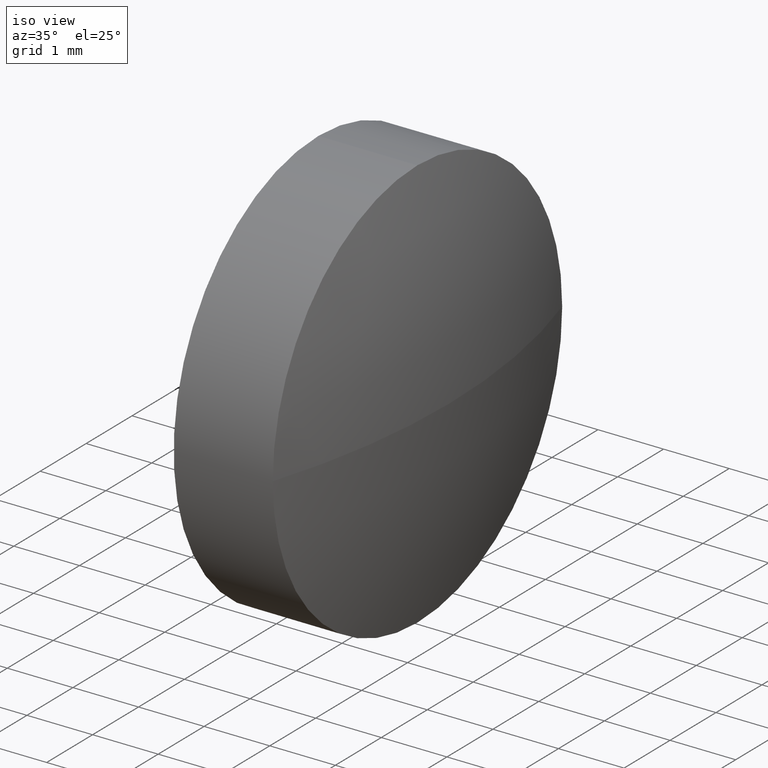
[diagram: clean part render]
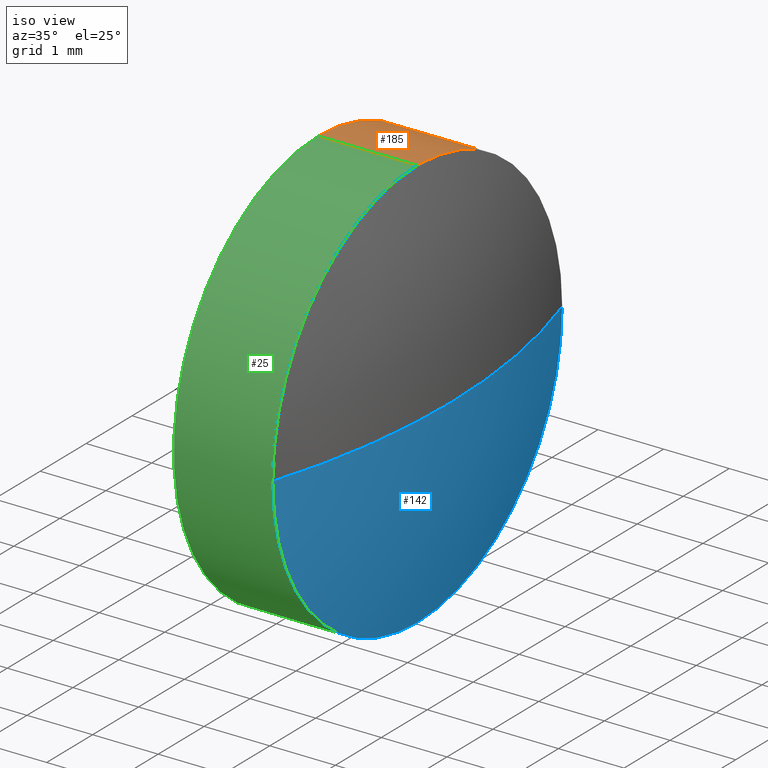
[diagram: same view with three faces highlighted in distinct colors, each labeled with its STEP entity id]
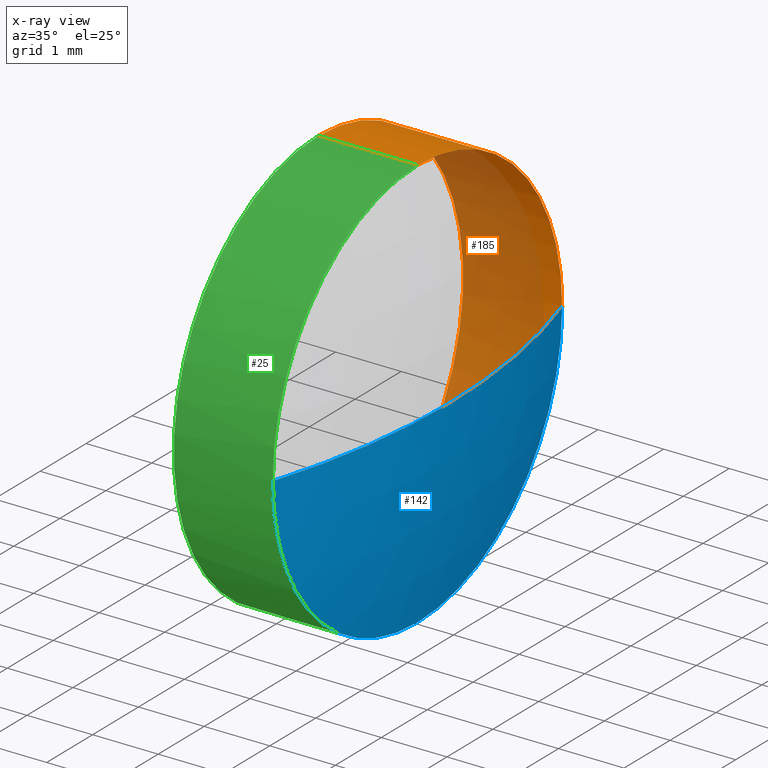
[diagram: x-ray of the same camera — body ghosted, the three highlighted faces saturated]
A machine part, iso view with three faces highlighted in distinct colors.
The next image is the same camera in x-ray (body ghosted, the three faces saturated) — at least one of them is partly hidden behind the body in this view.
Their STEP definitions:

[orange] entity #185 — the highlighted cylindrical surface (partial cylindrical patch) has radius 3.15 mm, axis along (-1, -0, -0).
#2 = CARTESIAN_POINT ( 'NONE',  ( 608.5916480025523500, -14.05118396197294000, 3.857637417314037000E-016 ) ) ;
#16 = DIRECTION ( 'NONE',  ( -1.000000000000000000, -0.0000000000000000000, -0.0000000000000000000 ) ) ;
#18 = ORIENTED_EDGE ( 'NONE', *, *, #23, .F. ) ;
#20 = CIRCLE ( 'NONE', #42, 3.149999999999998100 ) ;
#21 = EDGE_CURVE ( 'NONE', #133, #169, #31, .T. ) ;
#23 = EDGE_CURVE ( 'NONE', #69, #169, #20, .T. ) ;
#24 = EDGE_CURVE ( 'NONE', #153, #69, #150, .T. ) ;
#26 = CIRCLE ( 'NONE', #110, 3.149999999999998100 ) ;
#30 = DIRECTION ( 'NONE',  ( 0.0000000000000000000, 0.0000000000000000000, 1.000000000000000000 ) ) ;
#31 = LINE ( 'NONE', #40, #53 ) ;
#39 = CARTESIAN_POINT ( 'NONE',  ( 607.0816480025523600, -17.20118396197295900, 3.149999999999998100 ) ) ;
#40 = CARTESIAN_POINT ( 'NONE',  ( 606.2759375900104700, -17.20118396197295900, -3.149999999999998100 ) ) ;
#42 = AXIS2_PLACEMENT_3D ( 'NONE', #100, #114, #129 ) ;
#43 = CARTESIAN_POINT ( 'NONE',  ( 607.0816480025523600, -17.20118396197295900, -3.149999999999998100 ) ) ;
#48 = CARTESIAN_POINT ( 'NONE',  ( 608.5916480025523500, -17.20118396197295900, 0.0000000000000000000 ) ) ;
#50 = ORIENTED_EDGE ( 'NONE', *, *, #24, .F. ) ;
#53 = VECTOR ( 'NONE', #16, 1000.000000000000000 ) ;
#57 = AXIS2_PLACEMENT_3D ( 'NONE', #48, #105, #72 ) ;
#60 = VECTOR ( 'NONE', #146, 1000.000000000000000 ) ;
#69 = VERTEX_POINT ( 'NONE', #39 ) ;
#72 = DIRECTION ( 'NONE',  ( 0.0000000000000000000, 0.0000000000000000000, 1.000000000000000000 ) ) ;
#84 = CYLINDRICAL_SURFACE ( 'NONE', #116, 3.149999999999998100 ) ;
#85 = ORIENTED_EDGE ( 'NONE', *, *, #183, .T. ) ;
#88 = CARTESIAN_POINT ( 'NONE',  ( 606.2759375900104700, -17.20118396197295900, 0.0000000000000000000 ) ) ;
#92 = ORIENTED_EDGE ( 'NONE', *, *, #111, .T. ) ;
#100 = CARTESIAN_POINT ( 'NONE',  ( 607.0816480025523600, -17.20118396197295900, 0.0000000000000000000 ) ) ;
#101 = CIRCLE ( 'NONE', #57, 3.149999999999998100 ) ;
#102 = DIRECTION ( 'NONE',  ( -1.000000000000000000, -0.0000000000000000000, -0.0000000000000000000 ) ) ;
#105 = DIRECTION ( 'NONE',  ( -1.000000000000000000, -0.0000000000000000000, -0.0000000000000000000 ) ) ;
#110 = AXIS2_PLACEMENT_3D ( 'NONE', #179, #182, #30 ) ;
#111 = EDGE_CURVE ( 'NONE', #117, #133, #26, .T. ) ;
#114 = DIRECTION ( 'NONE',  ( -1.000000000000000000, -0.0000000000000000000, -0.0000000000000000000 ) ) ;
#116 = AXIS2_PLACEMENT_3D ( 'NONE', #88, #102, #131 ) ;
#117 = VERTEX_POINT ( 'NONE', #2 ) ;
#118 = CARTESIAN_POINT ( 'NONE',  ( 608.5916480025523500, -17.20118396197295900, 3.149999999999998100 ) ) ;
#129 = DIRECTION ( 'NONE',  ( 0.0000000000000000000, 0.0000000000000000000, 1.000000000000000000 ) ) ;
#130 = EDGE_LOOP ( 'NONE', ( #92, #171, #18, #50, #85 ) ) ;
#131 = DIRECTION ( 'NONE',  ( 0.0000000000000000000, 0.0000000000000000000, 1.000000000000000000 ) ) ;
#133 = VERTEX_POINT ( 'NONE', #162 ) ;
#140 = FACE_OUTER_BOUND ( 'NONE', #130, .T. ) ;
#144 = CARTESIAN_POINT ( 'NONE',  ( 606.2759375900104700, -17.20118396197295900, 3.149999999999998100 ) ) ;
#146 = DIRECTION ( 'NONE',  ( -1.000000000000000000, -0.0000000000000000000, -0.0000000000000000000 ) ) ;
#150 = LINE ( 'NONE', #144, #60 ) ;
#153 = VERTEX_POINT ( 'NONE', #118 ) ;
#162 = CARTESIAN_POINT ( 'NONE',  ( 608.5916480025523500, -17.20118396197295900, -3.149999999999998100 ) ) ;
#169 = VERTEX_POINT ( 'NONE', #43 ) ;
#171 = ORIENTED_EDGE ( 'NONE', *, *, #21, .T. ) ;
#179 = CARTESIAN_POINT ( 'NONE',  ( 608.5916480025523500, -17.20118396197295900, 0.0000000000000000000 ) ) ;
#182 = DIRECTION ( 'NONE',  ( -1.000000000000000000, -0.0000000000000000000, -0.0000000000000000000 ) ) ;
#183 = EDGE_CURVE ( 'NONE', #153, #117, #101, .T. ) ;
#185 = ADVANCED_FACE ( 'NONE', ( #140 ), #84, .T. ) ;

[blue] entity #142 — the highlighted spherical surface has radius 10.37 mm.
#2 = CARTESIAN_POINT ( 'NONE',  ( 608.5916480025523500, -14.05118396197294000, 3.857637417314037000E-016 ) ) ;
#4 = DIRECTION ( 'NONE',  ( 0.0000000000000000000, -1.000000000000000000, 0.0000000000000000000 ) ) ;
#11 = VERTEX_POINT ( 'NONE', #71 ) ;
#13 = SPHERICAL_SURFACE ( 'NONE', #68, 10.36999999999987000 ) ;
#15 = DIRECTION ( 'NONE',  ( 0.0000000000000000000, -1.224646799147353200E-016, 1.000000000000000000 ) ) ;
#26 = CIRCLE ( 'NONE', #110, 3.149999999999998100 ) ;
#30 = DIRECTION ( 'NONE',  ( 0.0000000000000000000, 0.0000000000000000000, 1.000000000000000000 ) ) ;
#34 = EDGE_CURVE ( 'NONE', #11, #117, #95, .T. ) ;
#38 = CARTESIAN_POINT ( 'NONE',  ( 598.7116480025524700, -17.20118396197283800, 0.0000000000000000000 ) ) ;
#44 = ORIENTED_EDGE ( 'NONE', *, *, #70, .T. ) ;
#45 = CARTESIAN_POINT ( 'NONE',  ( 598.7116480025524700, -17.20118396197283800, 0.0000000000000000000 ) ) ;
#47 = ORIENTED_EDGE ( 'NONE', *, *, #111, .F. ) ;
#59 = DIRECTION ( 'NONE',  ( 0.0000000000000000000, 0.0000000000000000000, -1.000000000000000000 ) ) ;
#67 = FACE_OUTER_BOUND ( 'NONE', #176, .T. ) ;
#68 = AXIS2_PLACEMENT_3D ( 'NONE', #45, #93, #4 ) ;
#70 = EDGE_CURVE ( 'NONE', #11, #137, #103, .T. ) ;
#71 = CARTESIAN_POINT ( 'NONE',  ( 609.0816480025523600, -17.20118396197283800, 0.0000000000000000000 ) ) ;
#73 = DIRECTION ( 'NONE',  ( -1.000000000000000000, 0.0000000000000000000, 0.0000000000000000000 ) ) ;
#75 = DIRECTION ( 'NONE',  ( 0.0000000000000000000, 0.0000000000000000000, 1.000000000000000000 ) ) ;
#77 = AXIS2_PLACEMENT_3D ( 'NONE', #38, #15, #157 ) ;
#90 = CARTESIAN_POINT ( 'NONE',  ( 608.5916480025523500, -17.20118396197295900, 0.0000000000000000000 ) ) ;
#93 = DIRECTION ( 'NONE',  ( 0.0000000000000000000, 0.0000000000000000000, 1.000000000000000000 ) ) ;
#95 = CIRCLE ( 'NONE', #77, 10.36999999999987000 ) ;
#96 = EDGE_CURVE ( 'NONE', #133, #137, #141, .T. ) ;
#99 = AXIS2_PLACEMENT_3D ( 'NONE', #90, #163, #75 ) ;
#103 = CIRCLE ( 'NONE', #139, 10.36999999999988000 ) ;
#110 = AXIS2_PLACEMENT_3D ( 'NONE', #179, #182, #30 ) ;
#111 = EDGE_CURVE ( 'NONE', #117, #133, #26, .T. ) ;
#117 = VERTEX_POINT ( 'NONE', #2 ) ;
#125 = ORIENTED_EDGE ( 'NONE', *, *, #96, .F. ) ;
#133 = VERTEX_POINT ( 'NONE', #162 ) ;
#137 = VERTEX_POINT ( 'NONE', #178 ) ;
#139 = AXIS2_PLACEMENT_3D ( 'NONE', #159, #59, #73 ) ;
#141 = CIRCLE ( 'NONE', #99, 3.149999999999998100 ) ;
#142 = ADVANCED_FACE ( 'NONE', ( #67 ), #13, .T. ) ;
#157 = DIRECTION ( 'NONE',  ( 0.0000000000000000000, -1.000000000000000000, -1.224646799147353200E-016 ) ) ;
#159 = CARTESIAN_POINT ( 'NONE',  ( 598.7116480025524700, -17.20118396197283800, 0.0000000000000000000 ) ) ;
#162 = CARTESIAN_POINT ( 'NONE',  ( 608.5916480025523500, -17.20118396197295900, -3.149999999999998100 ) ) ;
#163 = DIRECTION ( 'NONE',  ( -1.000000000000000000, -0.0000000000000000000, -0.0000000000000000000 ) ) ;
#174 = ORIENTED_EDGE ( 'NONE', *, *, #34, .F. ) ;
#176 = EDGE_LOOP ( 'NONE', ( #174, #44, #125, #47 ) ) ;
#178 = CARTESIAN_POINT ( 'NONE',  ( 608.5916480025523500, -20.35118396197285400, 0.0000000000000000000 ) ) ;
#179 = CARTESIAN_POINT ( 'NONE',  ( 608.5916480025523500, -17.20118396197295900, 0.0000000000000000000 ) ) ;
#182 = DIRECTION ( 'NONE',  ( -1.000000000000000000, -0.0000000000000000000, -0.0000000000000000000 ) ) ;

[green] entity #25 — the highlighted cylindrical surface (partial cylindrical patch) has radius 3.15 mm, axis along (-1, -0, -0).
#1 = DIRECTION ( 'NONE',  ( 0.0000000000000000000, 0.0000000000000000000, 1.000000000000000000 ) ) ;
#3 = DIRECTION ( 'NONE',  ( -1.000000000000000000, -0.0000000000000000000, -0.0000000000000000000 ) ) ;
#16 = DIRECTION ( 'NONE',  ( -1.000000000000000000, -0.0000000000000000000, -0.0000000000000000000 ) ) ;
#19 = DIRECTION ( 'NONE',  ( -1.000000000000000000, -0.0000000000000000000, -0.0000000000000000000 ) ) ;
#21 = EDGE_CURVE ( 'NONE', #133, #169, #31, .T. ) ;
#24 = EDGE_CURVE ( 'NONE', #153, #69, #150, .T. ) ;
#25 = ADVANCED_FACE ( 'NONE', ( #155 ), #127, .T. ) ;
#28 = AXIS2_PLACEMENT_3D ( 'NONE', #29, #19, #46 ) ;
#29 = CARTESIAN_POINT ( 'NONE',  ( 607.0816480025523600, -17.20118396197295900, 0.0000000000000000000 ) ) ;
#31 = LINE ( 'NONE', #40, #53 ) ;
#39 = CARTESIAN_POINT ( 'NONE',  ( 607.0816480025523600, -17.20118396197295900, 3.149999999999998100 ) ) ;
#40 = CARTESIAN_POINT ( 'NONE',  ( 606.2759375900104700, -17.20118396197295900, -3.149999999999998100 ) ) ;
#43 = CARTESIAN_POINT ( 'NONE',  ( 607.0816480025523600, -17.20118396197295900, -3.149999999999998100 ) ) ;
#46 = DIRECTION ( 'NONE',  ( 0.0000000000000000000, 0.0000000000000000000, 1.000000000000000000 ) ) ;
#53 = VECTOR ( 'NONE', #16, 1000.000000000000000 ) ;
#54 = EDGE_CURVE ( 'NONE', #137, #153, #112, .T. ) ;
#58 = DIRECTION ( 'NONE',  ( -1.000000000000000000, -0.0000000000000000000, -0.0000000000000000000 ) ) ;
#60 = VECTOR ( 'NONE', #146, 1000.000000000000000 ) ;
#63 = ORIENTED_EDGE ( 'NONE', *, *, #24, .T. ) ;
#65 = AXIS2_PLACEMENT_3D ( 'NONE', #128, #3, #1 ) ;
#69 = VERTEX_POINT ( 'NONE', #39 ) ;
#74 = CIRCLE ( 'NONE', #28, 3.149999999999998100 ) ;
#75 = DIRECTION ( 'NONE',  ( 0.0000000000000000000, 0.0000000000000000000, 1.000000000000000000 ) ) ;
#82 = EDGE_CURVE ( 'NONE', #169, #69, #74, .T. ) ;
#87 = EDGE_LOOP ( 'NONE', ( #97, #89, #186, #63, #166 ) ) ;
#89 = ORIENTED_EDGE ( 'NONE', *, *, #96, .T. ) ;
#90 = CARTESIAN_POINT ( 'NONE',  ( 608.5916480025523500, -17.20118396197295900, 0.0000000000000000000 ) ) ;
#96 = EDGE_CURVE ( 'NONE', #133, #137, #141, .T. ) ;
#97 = ORIENTED_EDGE ( 'NONE', *, *, #21, .F. ) ;
#99 = AXIS2_PLACEMENT_3D ( 'NONE', #90, #163, #75 ) ;
#112 = CIRCLE ( 'NONE', #122, 3.149999999999998100 ) ;
#118 = CARTESIAN_POINT ( 'NONE',  ( 608.5916480025523500, -17.20118396197295900, 3.149999999999998100 ) ) ;
#122 = AXIS2_PLACEMENT_3D ( 'NONE', #177, #58, #126 ) ;
#126 = DIRECTION ( 'NONE',  ( 0.0000000000000000000, 0.0000000000000000000, 1.000000000000000000 ) ) ;
#127 = CYLINDRICAL_SURFACE ( 'NONE', #65, 3.149999999999998100 ) ;
#128 = CARTESIAN_POINT ( 'NONE',  ( 606.2759375900104700, -17.20118396197295900, 0.0000000000000000000 ) ) ;
#133 = VERTEX_POINT ( 'NONE', #162 ) ;
#137 = VERTEX_POINT ( 'NONE', #178 ) ;
#141 = CIRCLE ( 'NONE', #99, 3.149999999999998100 ) ;
#144 = CARTESIAN_POINT ( 'NONE',  ( 606.2759375900104700, -17.20118396197295900, 3.149999999999998100 ) ) ;
#146 = DIRECTION ( 'NONE',  ( -1.000000000000000000, -0.0000000000000000000, -0.0000000000000000000 ) ) ;
#150 = LINE ( 'NONE', #144, #60 ) ;
#153 = VERTEX_POINT ( 'NONE', #118 ) ;
#155 = FACE_OUTER_BOUND ( 'NONE', #87, .T. ) ;
#162 = CARTESIAN_POINT ( 'NONE',  ( 608.5916480025523500, -17.20118396197295900, -3.149999999999998100 ) ) ;
#163 = DIRECTION ( 'NONE',  ( -1.000000000000000000, -0.0000000000000000000, -0.0000000000000000000 ) ) ;
#166 = ORIENTED_EDGE ( 'NONE', *, *, #82, .F. ) ;
#169 = VERTEX_POINT ( 'NONE', #43 ) ;
#177 = CARTESIAN_POINT ( 'NONE',  ( 608.5916480025523500, -17.20118396197295900, 0.0000000000000000000 ) ) ;
#178 = CARTESIAN_POINT ( 'NONE',  ( 608.5916480025523500, -20.35118396197285400, 0.0000000000000000000 ) ) ;
#186 = ORIENTED_EDGE ( 'NONE', *, *, #54, .T. ) ;